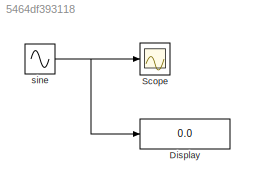
MODEL slx_5464df393118
KIND model
CONFIG AbsTol = auto
CONFIG EnableMultiTasking = off
CONFIG FixedStep = 0.1
CONFIG MaxStep = auto
CONFIG MinStep = auto
CONFIG RelTol = 1e-3
CONFIG SampleTimeConstraint = Unconstrained
CONFIG SolverName = FixedStepAuto
CONFIG StartFcn = blk = 'live_sine_data/sine';\nevent = 'PostOutputs';\nglobal hApp;\nsine_wave_listener = @(block, event) SineWaveCallback(hApp, block.OutputPort(1).Data);\nsine_wave_handler = add_exec_event_listener(blk, event, sine_wave_listener);
CONFIG StartTime = 0.0
CONFIG StopTime = inf
BLOCK [Display] Display
  Decimation = 1
  Ports = [1]
BLOCK [Scope] Scope
  Floating = off
  NumInputPorts = 1
  Ports = [1]
  ScopeSpecificationString = Simulink.scopes.TimeScopeBlockCfg('CurrentConfiguration', extmgr.ConfigurationSet(extmgr.Configuration('Core','General UI',true),extmgr.Configuration('Core','Source UI',true),extmgr.Configuration('Sources','WiredSimulink',true),extmgr.Configuration('Visuals','Time Domain',true,'SerializedDisplays',{struct('MinYLimReal','-1.24986','MaxYLimReal','1.24951','YLabelReal','','MinYLimMag','0.00000','MaxY...<+1324ch>
BLOCK [Sin] sine
  Ports = [0, 1]
  SampleTime = 0
NET sine:1 -> Display:1, Scope:1
note: NET lines group one-source signal fan-out (src -> all destinations, sorted); 1:1 wires keep LINE
